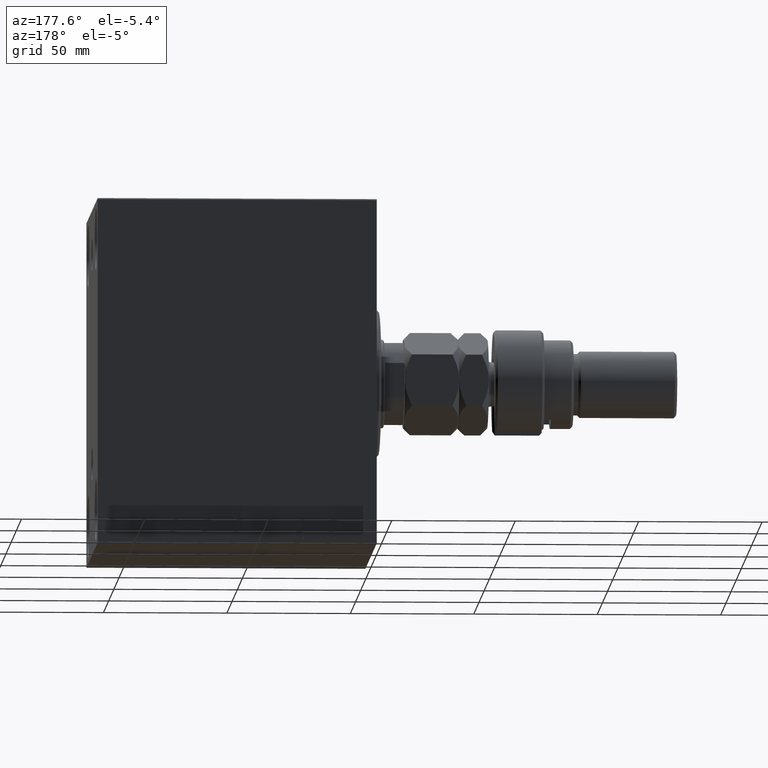
[diagram: clean part render]
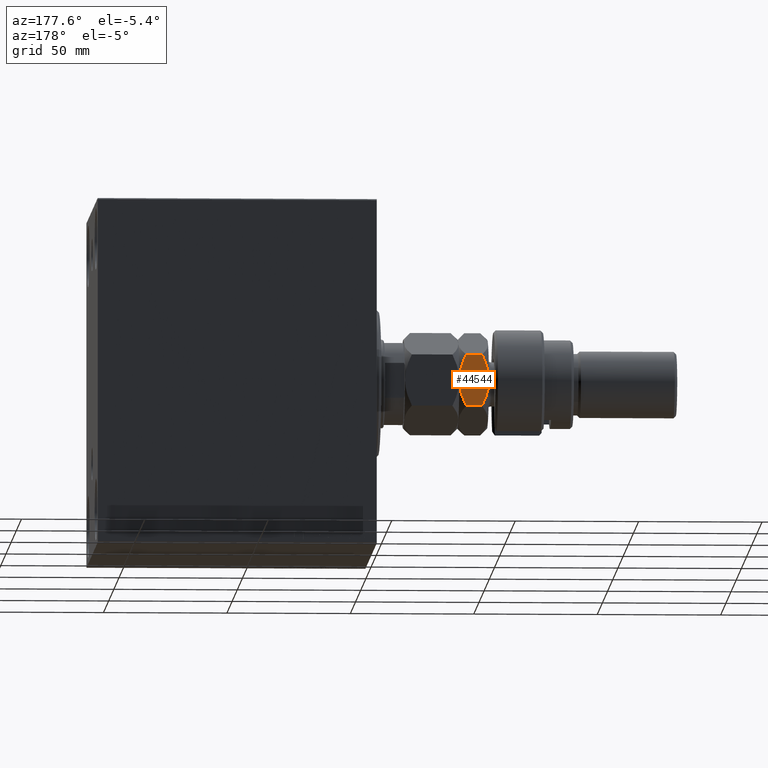
[diagram: same view with one face highlighted and labeled with its STEP entity id]
A machine part, auxiliary view. The second image highlights one B-rep face of the part: STEP entity #44544.
In plain terms, the highlighted planar face has unit normal (0, -1, 0).
Its self-contained STEP definition (entity closure, byte-faithful):
#142 = CARTESIAN_POINT ( 'NONE',  ( -17.99999999999999645, 10.39230484541325694, 31.21539030917348967 ) ) ;
#538 = DIRECTION ( 'NONE',  ( -0.000000000000000000, -0.000000000000000000, -1.000000000000000000 ) ) ;
#605 = CARTESIAN_POINT ( 'NONE',  ( -10.56546083169953398, 14.68463803553234293, 34.00000000000000000 ) ) ;
#1548 = CARTESIAN_POINT ( 'NONE',  ( -8.999999999999991118, 15.58845726811989785, 22.00000000000000000 ) ) ;
#2086 = CARTESIAN_POINT ( 'NONE',  ( -4.679827342117714303E-16, 20.78460969082652454, 31.21539030917348612 ) ) ;
#2633 = CARTESIAN_POINT ( 'NONE',  ( -4.679827342117714303E-16, 20.78460969082652454, 24.78460969082651744 ) ) ;
#2777 = VECTOR ( 'NONE', #538, 1000.000000000000000 ) ;
#2839 = VERTEX_POINT ( 'NONE', #1548 ) ;
#4146 = ORIENTED_EDGE ( 'NONE', *, *, #6831, .F. ) ;
#4501 = B_SPLINE_CURVE_WITH_KNOTS ( 'NONE', 3,
 ( #32494, #605, #43337, #28503, #32726, #142 ),
 .UNSPECIFIED., .F., .F.,
 ( 4, 2, 4 ),
 ( 0.01077282027732747241, 0.01612137750481873466, 0.02146993473231000038 ),
 .UNSPECIFIED. ) ;
#5048 = CARTESIAN_POINT ( 'NONE',  ( -8.999999999999991118, 15.58845726811989785, 22.00000000000000000 ) ) ;
#5290 = VERTEX_POINT ( 'NONE', #2633 ) ;
#5610 = DIRECTION ( 'NONE',  ( 0.5000000000000003331, -0.8660254037844385966, 0.000000000000000000 ) ) ;
#6831 = EDGE_CURVE ( 'NONE', #8234, #23288, #20546, .T. ) ;
#6854 = LINE ( 'NONE', #42504, #6958 ) ;
#6958 = VECTOR ( 'NONE', #23723, 1000.000000000000000 ) ;
#7136 = CARTESIAN_POINT ( 'NONE',  ( -17.99999999999999645, 10.39230484541325694, 24.78460969082651388 ) ) ;
#7788 = CARTESIAN_POINT ( 'NONE',  ( -5.895697476400513892, 17.38072716576608912, 22.27639590712158935 ) ) ;
#7848 = CARTESIAN_POINT ( 'NONE',  ( -9.000000000000000000, 15.58845726811988897, 34.00000000000000000 ) ) ;
#8103 = CARTESIAN_POINT ( 'NONE',  ( -10.58425150785352997, 14.67378923359657783, 22.08694689011814205 ) ) ;
#8190 = EDGE_CURVE ( 'NONE', #30312, #2839, #40078, .T. ) ;
#8234 = VERTEX_POINT ( 'NONE', #42266 ) ;
#8844 = ORIENTED_EDGE ( 'NONE', *, *, #13498, .T. ) ;
#9742 = EDGE_CURVE ( 'NONE', #23288, #41122, #4501, .T. ) ;
#11895 = CARTESIAN_POINT ( 'NONE',  ( -9.790461530629860576, 15.13208409062669269, 22.01733285647408067 ) ) ;
#12591 = CARTESIAN_POINT ( 'NONE',  ( -12.90267270303526281, 13.33524813246346774, 22.53708555582899820 ) ) ;
#12928 = CARTESIAN_POINT ( 'NONE',  ( -5.858009779716800480, 17.40248616759156519, 33.65943689774472602 ) ) ;
#13168 = CARTESIAN_POINT ( 'NONE',  ( -9.000000000000000000, 15.58845726811988897, 34.00000000000000000 ) ) ;
#13498 = EDGE_CURVE ( 'NONE', #8234, #5290, #6854, .T. ) ;
#14421 = CARTESIAN_POINT ( 'NONE',  ( -2.860715810337959741, 19.13297464765287614, 23.27257470150423657 ) ) ;
#15437 = CARTESIAN_POINT ( 'NONE',  ( -12.14199022028319064, 13.77442836864821807, 22.34056310225526332 ) ) ;
#16714 = PLANE ( 'NONE',  #42953 ) ;
#17169 = CARTESIAN_POINT ( 'NONE',  ( -2.339913671058857151E-16, 20.78460969082652454, 34.00000000000000000 ) ) ;
#18199 = CARTESIAN_POINT ( 'NONE',  ( -1.409696000463984689, 19.97072132548310108, 23.97072132548305134 ) ) ;
#19166 = ORIENTED_EDGE ( 'NONE', *, *, #8190, .F. ) ;
#20018 = DIRECTION ( 'NONE',  ( 0.8660254037844384856, 0.5000000000000002220, 0.000000000000000000 ) ) ;
#20546 = B_SPLINE_CURVE_WITH_KNOTS ( 'NONE', 3,
 ( #2086, #38428, #24273, #45511, #12928, #27595, #34429, #20953, #30889, #13168 ),
 .UNSPECIFIED., .F., .F.,
 ( 4, 2, 2, 2, 4 ),
 ( 2.544307986817553445E-07, 0.005386537354063076870, 0.008079678815695275074, 0.009426249546511373742, 0.01077282027732747241 ),
 .UNSPECIFIED. ) ;
#20953 = CARTESIAN_POINT ( 'NONE',  ( -8.209538469370126990, 16.04483044561309413, 33.98266714352591578 ) ) ;
#23288 = VERTEX_POINT ( 'NONE', #7848 ) ;
#23723 = DIRECTION ( 'NONE',  ( -0.000000000000000000, -0.000000000000000000, -1.000000000000000000 ) ) ;
#24273 = CARTESIAN_POINT ( 'NONE',  ( -2.854601888853810276, 19.13650452186756112, 32.72261692211012019 ) ) ;
#26081 = CARTESIAN_POINT ( 'NONE',  ( -10.97671975407794065, 14.44719758599053883, 22.13872259909857121 ) ) ;
#26316 = CARTESIAN_POINT ( 'NONE',  ( -9.394125676616218001, 15.36090870263096875, 21.99999999999999289 ) ) ;
#26786 = CARTESIAN_POINT ( 'NONE',  ( -17.99999999999999645, 10.39230484541325694, 24.78460969082651388 ) ) ;
#27595 = CARTESIAN_POINT ( 'NONE',  ( -7.023280245922049581, 16.72971695024924443, 33.86127740090142879 ) ) ;
#28503 = CARTESIAN_POINT ( 'NONE',  ( -15.13928418966203004, 12.04393988858690001, 32.72742529849576698 ) ) ;
#28776 = EDGE_CURVE ( 'NONE', #41122, #30312, #40198, .T. ) ;
#29617 = CARTESIAN_POINT ( 'NONE',  ( -15.14539811114617684, 12.04041001437222214, 23.27738307788986560 ) ) ;
#30312 = VERTEX_POINT ( 'NONE', #7136 ) ;
#30650 = CARTESIAN_POINT ( 'NONE',  ( -17.99999999999999645, 10.39230484541325694, 31.21539030917348967 ) ) ;
#30889 = CARTESIAN_POINT ( 'NONE',  ( -8.605874323383769564, 15.81600583360881807, 34.00000000000000711 ) ) ;
#31232 = B_SPLINE_CURVE_WITH_KNOTS ( 'NONE', 3,
 ( #32606, #35913, #7788, #14421, #18199, #32144 ),
 .UNSPECIFIED., .F., .F.,
 ( 4, 2, 4 ),
 ( 0.01077282027732748108, 0.01612137750481874160, 0.02146993473231000038 ),
 .UNSPECIFIED. ) ;
#32144 = CARTESIAN_POINT ( 'NONE',  ( -4.679827342117714303E-16, 20.78460969082652454, 24.78460969082651744 ) ) ;
#32494 = CARTESIAN_POINT ( 'NONE',  ( -9.000000000000000000, 15.58845726811988897, 34.00000000000000000 ) ) ;
#32606 = CARTESIAN_POINT ( 'NONE',  ( -8.999999999999991118, 15.58845726811989785, 22.00000000000000000 ) ) ;
#32726 = CARTESIAN_POINT ( 'NONE',  ( -16.59030399953601176, 11.20619321075668040, 32.02927867451695221 ) ) ;
#33387 = CARTESIAN_POINT ( 'NONE',  ( -16.58866960374794886, 11.20713682960488100, 23.96977770663489693 ) ) ;
#34429 = CARTESIAN_POINT ( 'NONE',  ( -7.415748492146455817, 16.50312530264320188, 33.91305310988184374 ) ) ;
#34810 = ORIENTED_EDGE ( 'NONE', *, *, #43960, .F. ) ;
#35786 = ORIENTED_EDGE ( 'NONE', *, *, #9742, .F. ) ;
#35913 = CARTESIAN_POINT ( 'NONE',  ( -7.434539168300448253, 16.49227650070744033, 22.00000000000000000 ) ) ;
#36890 = CARTESIAN_POINT ( 'NONE',  ( -17.99999999999999645, 10.39230484541325694, 34.00000000000000000 ) ) ;
#37951 = FACE_OUTER_BOUND ( 'NONE', #46203, .T. ) ;
#38428 = CARTESIAN_POINT ( 'NONE',  ( -1.411330396252047148, 19.96977770663490404, 32.03022229336509952 ) ) ;
#40078 = B_SPLINE_CURVE_WITH_KNOTS ( 'NONE', 3,
 ( #26786, #33387, #29617, #12591, #15437, #26081, #8103, #11895, #26316, #5048 ),
 .UNSPECIFIED., .F., .F.,
 ( 4, 2, 2, 2, 4 ),
 ( 2.544307986796311447E-07, 0.005386537354063079472, 0.008079678815695278543, 0.009426249546511378946, 0.01077282027732748108 ),
 .UNSPECIFIED. ) ;
#40198 = LINE ( 'NONE', #36890, #2777 ) ;
#41122 = VERTEX_POINT ( 'NONE', #30650 ) ;
#42266 = CARTESIAN_POINT ( 'NONE',  ( -4.679827342117714303E-16, 20.78460969082652454, 31.21539030917348612 ) ) ;
#42504 = CARTESIAN_POINT ( 'NONE',  ( -2.339913671058857151E-16, 20.78460969082652454, 34.00000000000000000 ) ) ;
#42953 = AXIS2_PLACEMENT_3D ( 'NONE', #17169, #5610, #20018 ) ;
#43337 = CARTESIAN_POINT ( 'NONE',  ( -12.10430252359947545, 13.79618737047369947, 33.72360409287842486 ) ) ;
#43960 = EDGE_CURVE ( 'NONE', #2839, #5290, #31232, .T. ) ;
#44544 = ADVANCED_FACE ( 'NONE', ( #37951 ), #16714, .F. ) ;
#45511 = CARTESIAN_POINT ( 'NONE',  ( -5.097327296964721199, 17.84166640377631197, 33.46291444417100536 ) ) ;
#45825 = ORIENTED_EDGE ( 'NONE', *, *, #28776, .F. ) ;
#46203 = EDGE_LOOP ( 'NONE', ( #19166, #45825, #35786, #4146, #8844, #34810 ) ) ;